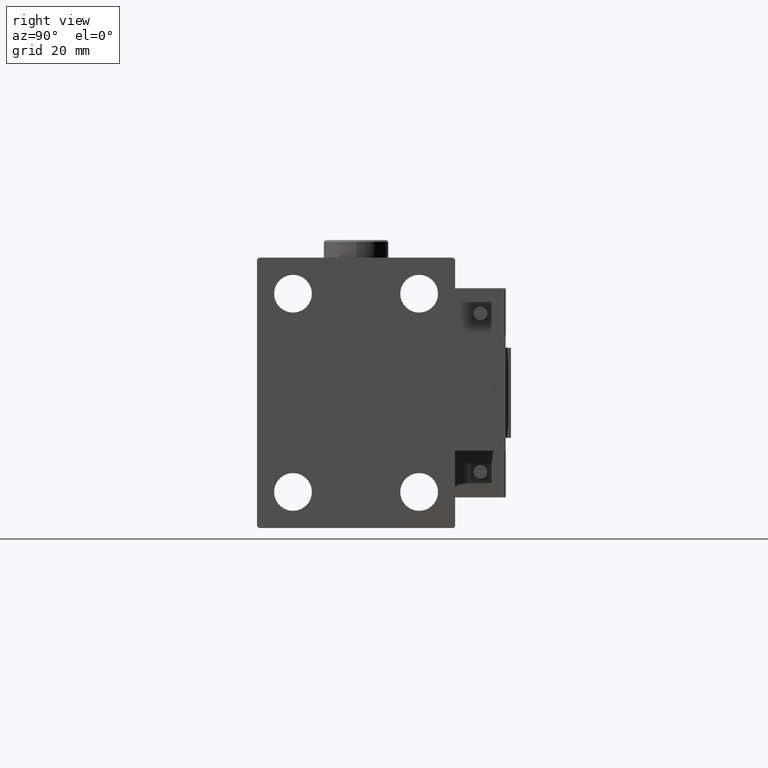
[diagram: clean part render]
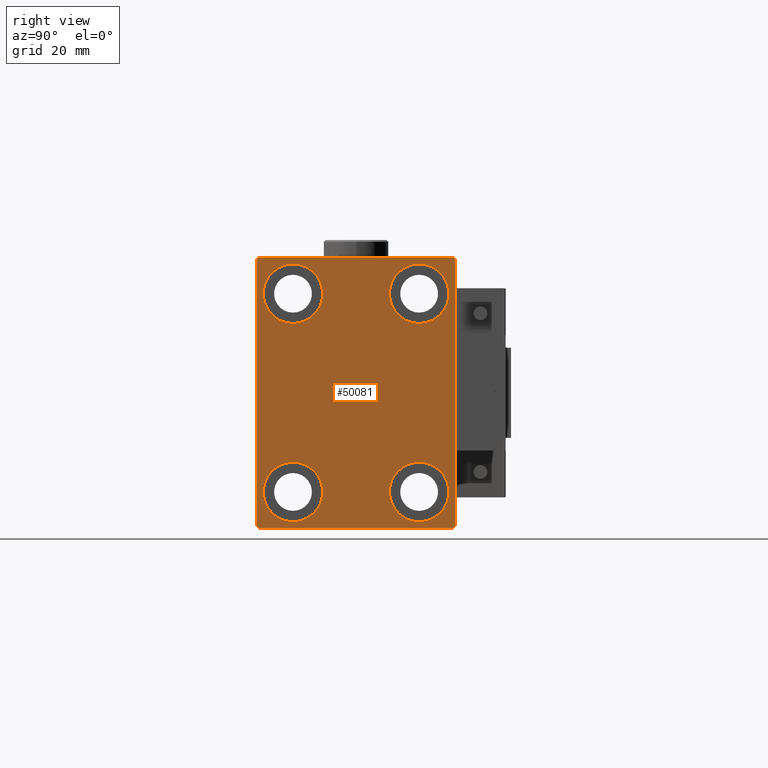
[diagram: same view with one face highlighted and labeled with its STEP entity id]
A machine part, right view. The second image highlights one B-rep face of the part: STEP entity #50081.
In plain terms, the highlighted planar face has unit normal (1, 0, 0).
Its self-contained STEP definition (entity closure, byte-faithful):
#1097 = AXIS2_PLACEMENT_3D ( 'NONE', #37090, #36837, #1119 ) ;
#1119 = DIRECTION ( 'NONE',  ( 0.000000000000000000, 0.000000000000000000, 1.000000000000000000 ) ) ;
#1245 = ORIENTED_EDGE ( 'NONE', *, *, #13082, .T. ) ;
#1535 = CARTESIAN_POINT ( 'NONE',  ( 95.00000000000000000, -26.99999999999998934, -37.50000000000000000 ) ) ;
#2106 = ORIENTED_EDGE ( 'NONE', *, *, #39426, .T. ) ;
#2389 = EDGE_CURVE ( 'NONE', #47533, #44383, #18714, .T. ) ;
#2613 = CARTESIAN_POINT ( 'NONE',  ( 95.00000000000000000, 0.000000000000000000, 0.000000000000000000 ) ) ;
#2781 = DIRECTION ( 'NONE',  ( 0.000000000000000000, -0.7071067811865376918, -0.7071067811865573427 ) ) ;
#2840 = CARTESIAN_POINT ( 'NONE',  ( 95.00000000000000000, 27.49999999999999645, 37.50000000000000711 ) ) ;
#2869 = DIRECTION ( 'NONE',  ( 1.000000000000000000, 0.000000000000000000, 0.000000000000000000 ) ) ;
#3146 = VERTEX_POINT ( 'NONE', #23443 ) ;
#3320 = DIRECTION ( 'NONE',  ( 0.000000000000000000, 0.000000000000000000, 1.000000000000000000 ) ) ;
#3590 = CARTESIAN_POINT ( 'NONE',  ( 95.00000000000000000, 32.25000000000000000, -32.25000000000000000 ) ) ;
#3707 = EDGE_CURVE ( 'NONE', #48420, #22638, #5720, .T. ) ;
#3795 = CARTESIAN_POINT ( 'NONE',  ( 95.00000000000000000, 27.50000000000000355, -37.50000000000000000 ) ) ;
#4222 = EDGE_CURVE ( 'NONE', #36902, #7836, #24259, .T. ) ;
#4273 = VERTEX_POINT ( 'NONE', #17114 ) ;
#4441 = CARTESIAN_POINT ( 'NONE',  ( 95.00000000000000000, -27.50000000000000355, 37.00000000000001421 ) ) ;
#4586 = ORIENTED_EDGE ( 'NONE', *, *, #4222, .T. ) ;
#4947 = EDGE_CURVE ( 'NONE', #22638, #14462, #10617, .T. ) ;
#5196 = ORIENTED_EDGE ( 'NONE', *, *, #21775, .T. ) ;
#5672 = CARTESIAN_POINT ( 'NONE',  ( 95.00000000000000000, -32.25000000000039080, 32.24999999999949551 ) ) ;
#5720 = LINE ( 'NONE', #2840, #13418 ) ;
#5803 = DIRECTION ( 'NONE',  ( -1.000000000000000000, -0.000000000000000000, -0.000000000000000000 ) ) ;
#6260 = ORIENTED_EDGE ( 'NONE', *, *, #41521, .T. ) ;
#7619 = VERTEX_POINT ( 'NONE', #43861 ) ;
#7684 = DIRECTION ( 'NONE',  ( -1.000000000000000000, -0.000000000000000000, -0.000000000000000000 ) ) ;
#7836 = VERTEX_POINT ( 'NONE', #32904 ) ;
#8084 = AXIS2_PLACEMENT_3D ( 'NONE', #8455, #7684, #20202 ) ;
#8455 = CARTESIAN_POINT ( 'NONE',  ( 95.00000000000000000, 17.49999999999999645, -27.50000000000000355 ) ) ;
#9460 = VECTOR ( 'NONE', #25138, 1000.000000000000000 ) ;
#9716 = AXIS2_PLACEMENT_3D ( 'NONE', #2613, #2869, #47694 ) ;
#9866 = CARTESIAN_POINT ( 'NONE',  ( 95.00000000000000000, -17.49999999999999645, 35.74999999999999289 ) ) ;
#10439 = FACE_BOUND ( 'NONE', #14969, .T. ) ;
#10490 = ORIENTED_EDGE ( 'NONE', *, *, #21938, .T. ) ;
#10617 = LINE ( 'NONE', #5672, #14248 ) ;
#11442 = CIRCLE ( 'NONE', #28077, 8.250000000000000000 ) ;
#13082 = EDGE_CURVE ( 'NONE', #34893, #48420, #32868, .T. ) ;
#13313 = CARTESIAN_POINT ( 'NONE',  ( 95.00000000000000000, 32.24999999999944578, 32.25000000000078160 ) ) ;
#13418 = VECTOR ( 'NONE', #14065, 1000.000000000000000 ) ;
#13744 = ORIENTED_EDGE ( 'NONE', *, *, #21285, .T. ) ;
#13943 = ORIENTED_EDGE ( 'NONE', *, *, #48688, .T. ) ;
#14065 = DIRECTION ( 'NONE',  ( 0.000000000000000000, -1.000000000000000000, -1.261617073437677999E-16 ) ) ;
#14248 = VECTOR ( 'NONE', #2781, 1000.000000000000114 ) ;
#14335 = CIRCLE ( 'NONE', #29304, 8.249999999999992895 ) ;
#14359 = FACE_BOUND ( 'NONE', #23593, .T. ) ;
#14413 = LINE ( 'NONE', #45922, #37196 ) ;
#14462 = VERTEX_POINT ( 'NONE', #4441 ) ;
#14969 = EDGE_LOOP ( 'NONE', ( #4586, #10490 ) ) ;
#15039 = DIRECTION ( 'NONE',  ( -1.000000000000000000, -0.000000000000000000, -0.000000000000000000 ) ) ;
#15334 = EDGE_LOOP ( 'NONE', ( #6260, #13943 ) ) ;
#15612 = CIRCLE ( 'NONE', #8084, 8.250000000000000000 ) ;
#16044 = LINE ( 'NONE', #28039, #9460 ) ;
#16108 = CIRCLE ( 'NONE', #1097, 8.249999999999992895 ) ;
#17078 = CARTESIAN_POINT ( 'NONE',  ( 95.00000000000000000, -17.50000000000000355, -35.75000000000000711 ) ) ;
#17114 = CARTESIAN_POINT ( 'NONE',  ( 95.00000000000000000, -27.50000000000000355, -36.99999999999998579 ) ) ;
#17335 = CARTESIAN_POINT ( 'NONE',  ( 95.00000000000000000, -17.49999999999999645, 19.25000000000000000 ) ) ;
#18065 = CARTESIAN_POINT ( 'NONE',  ( 95.00000000000000000, 17.50000000000000355, 27.49999999999999645 ) ) ;
#18455 = DIRECTION ( 'NONE',  ( -1.000000000000000000, -0.000000000000000000, -0.000000000000000000 ) ) ;
#18714 = LINE ( 'NONE', #3590, #49147 ) ;
#18847 = CARTESIAN_POINT ( 'NONE',  ( 95.00000000000000000, -17.50000000000000355, -27.50000000000000355 ) ) ;
#18947 = VERTEX_POINT ( 'NONE', #50428 ) ;
#19128 = ORIENTED_EDGE ( 'NONE', *, *, #2389, .T. ) ;
#19419 = CARTESIAN_POINT ( 'NONE',  ( 95.00000000000000000, 27.00000000000001066, 37.50000000000000711 ) ) ;
#19488 = DIRECTION ( 'NONE',  ( -0.000000000000000000, 0.7071067811865474617, 0.7071067811865474617 ) ) ;
#19699 = LINE ( 'NONE', #3795, #32700 ) ;
#19830 = ORIENTED_EDGE ( 'NONE', *, *, #38997, .T. ) ;
#20202 = DIRECTION ( 'NONE',  ( 0.000000000000000000, 0.000000000000000000, 1.000000000000000000 ) ) ;
#20886 = AXIS2_PLACEMENT_3D ( 'NONE', #39011, #15039, #24673 ) ;
#21285 = EDGE_CURVE ( 'NONE', #4273, #22272, #22356, .T. ) ;
#21720 = CARTESIAN_POINT ( 'NONE',  ( 95.00000000000000000, -17.49999999999999645, 27.49999999999999645 ) ) ;
#21775 = EDGE_CURVE ( 'NONE', #3146, #18947, #15612, .T. ) ;
#21914 = FACE_BOUND ( 'NONE', #15334, .T. ) ;
#21938 = EDGE_CURVE ( 'NONE', #7836, #36902, #11442, .T. ) ;
#22272 = VERTEX_POINT ( 'NONE', #1535 ) ;
#22356 = LINE ( 'NONE', #30941, #35554 ) ;
#22638 = VERTEX_POINT ( 'NONE', #38199 ) ;
#22751 = DIRECTION ( 'NONE',  ( 0.000000000000000000, 0.000000000000000000, -1.000000000000000000 ) ) ;
#23060 = VERTEX_POINT ( 'NONE', #24432 ) ;
#23443 = CARTESIAN_POINT ( 'NONE',  ( 95.00000000000000000, 17.49999999999999645, -19.25000000000000355 ) ) ;
#23593 = EDGE_LOOP ( 'NONE', ( #19830, #5196 ) ) ;
#23894 = CIRCLE ( 'NONE', #37987, 8.249999999999992895 ) ;
#24135 = VERTEX_POINT ( 'NONE', #17335 ) ;
#24259 = CIRCLE ( 'NONE', #20886, 8.250000000000000000 ) ;
#24432 = CARTESIAN_POINT ( 'NONE',  ( 95.00000000000000000, 17.50000000000000355, 35.74999999999999289 ) ) ;
#24673 = DIRECTION ( 'NONE',  ( 0.000000000000000000, 0.000000000000000000, 1.000000000000000000 ) ) ;
#25138 = DIRECTION ( 'NONE',  ( 0.000000000000000000, 1.000000000000000000, 0.000000000000000000 ) ) ;
#26408 = DIRECTION ( 'NONE',  ( 0.000000000000000000, 0.000000000000000000, 1.000000000000000000 ) ) ;
#26609 = PLANE ( 'NONE',  #9716 ) ;
#27489 = ORIENTED_EDGE ( 'NONE', *, *, #3707, .T. ) ;
#28039 = CARTESIAN_POINT ( 'NONE',  ( 95.00000000000000000, -27.50000000000000355, -37.50000000000000000 ) ) ;
#28077 = AXIS2_PLACEMENT_3D ( 'NONE', #18847, #38380, #50619 ) ;
#29304 = AXIS2_PLACEMENT_3D ( 'NONE', #41569, #41322, #33507 ) ;
#29445 = CIRCLE ( 'NONE', #40980, 8.250000000000000000 ) ;
#29588 = ORIENTED_EDGE ( 'NONE', *, *, #38575, .T. ) ;
#30814 = ORIENTED_EDGE ( 'NONE', *, *, #48593, .T. ) ;
#30941 = CARTESIAN_POINT ( 'NONE',  ( 95.00000000000000000, -32.24999999999999289, -32.24999999999999289 ) ) ;
#31291 = ORIENTED_EDGE ( 'NONE', *, *, #34557, .T. ) ;
#32291 = EDGE_LOOP ( 'NONE', ( #30814, #31291 ) ) ;
#32700 = VECTOR ( 'NONE', #43932, 1000.000000000000000 ) ;
#32868 = LINE ( 'NONE', #13313, #45343 ) ;
#32904 = CARTESIAN_POINT ( 'NONE',  ( 95.00000000000000000, -17.50000000000000355, -19.25000000000000355 ) ) ;
#33449 = EDGE_LOOP ( 'NONE', ( #27489, #39621, #37302, #13744, #29588, #19128, #2106, #1245 ) ) ;
#33507 = DIRECTION ( 'NONE',  ( 0.000000000000000000, 0.000000000000000000, 1.000000000000000000 ) ) ;
#34557 = EDGE_CURVE ( 'NONE', #23060, #7619, #14335, .T. ) ;
#34684 = CIRCLE ( 'NONE', #38814, 8.249999999999992895 ) ;
#34893 = VERTEX_POINT ( 'NONE', #50343 ) ;
#35554 = VECTOR ( 'NONE', #42402, 1000.000000000000114 ) ;
#36655 = VERTEX_POINT ( 'NONE', #9866 ) ;
#36837 = DIRECTION ( 'NONE',  ( -1.000000000000000000, -0.000000000000000000, -0.000000000000000000 ) ) ;
#36902 = VERTEX_POINT ( 'NONE', #17078 ) ;
#37090 = CARTESIAN_POINT ( 'NONE',  ( 95.00000000000000000, -17.49999999999999645, 27.49999999999999645 ) ) ;
#37196 = VECTOR ( 'NONE', #22751, 1000.000000000000000 ) ;
#37302 = ORIENTED_EDGE ( 'NONE', *, *, #48628, .T. ) ;
#37987 = AXIS2_PLACEMENT_3D ( 'NONE', #18065, #5803, #38129 ) ;
#38129 = DIRECTION ( 'NONE',  ( 0.000000000000000000, 0.000000000000000000, 1.000000000000000000 ) ) ;
#38199 = CARTESIAN_POINT ( 'NONE',  ( 95.00000000000000000, -27.00000000000003197, 37.50000000000000000 ) ) ;
#38326 = FACE_OUTER_BOUND ( 'NONE', #33449, .T. ) ;
#38380 = DIRECTION ( 'NONE',  ( -1.000000000000000000, -0.000000000000000000, -0.000000000000000000 ) ) ;
#38575 = EDGE_CURVE ( 'NONE', #22272, #47533, #16044, .T. ) ;
#38639 = DIRECTION ( 'NONE',  ( -1.000000000000000000, -0.000000000000000000, -0.000000000000000000 ) ) ;
#38814 = AXIS2_PLACEMENT_3D ( 'NONE', #21720, #38639, #26408 ) ;
#38997 = EDGE_CURVE ( 'NONE', #18947, #3146, #29445, .T. ) ;
#39011 = CARTESIAN_POINT ( 'NONE',  ( 95.00000000000000000, -17.50000000000000355, -27.50000000000000355 ) ) ;
#39426 = EDGE_CURVE ( 'NONE', #44383, #34893, #19699, .T. ) ;
#39621 = ORIENTED_EDGE ( 'NONE', *, *, #4947, .T. ) ;
#40980 = AXIS2_PLACEMENT_3D ( 'NONE', #42163, #18455, #3320 ) ;
#41322 = DIRECTION ( 'NONE',  ( -1.000000000000000000, -0.000000000000000000, -0.000000000000000000 ) ) ;
#41521 = EDGE_CURVE ( 'NONE', #24135, #36655, #16108, .T. ) ;
#41569 = CARTESIAN_POINT ( 'NONE',  ( 95.00000000000000000, 17.50000000000000355, 27.49999999999999645 ) ) ;
#42163 = CARTESIAN_POINT ( 'NONE',  ( 95.00000000000000000, 17.49999999999999645, -27.50000000000000355 ) ) ;
#42402 = DIRECTION ( 'NONE',  ( -0.000000000000000000, 0.7071067811865474617, -0.7071067811865474617 ) ) ;
#43861 = CARTESIAN_POINT ( 'NONE',  ( 95.00000000000000000, 17.50000000000000355, 19.25000000000000000 ) ) ;
#43932 = DIRECTION ( 'NONE',  ( 0.000000000000000000, -9.251858538542970348E-17, 1.000000000000000000 ) ) ;
#44383 = VERTEX_POINT ( 'NONE', #45094 ) ;
#44746 = CARTESIAN_POINT ( 'NONE',  ( 95.00000000000000000, 27.00000000000000355, -37.50000000000000000 ) ) ;
#45094 = CARTESIAN_POINT ( 'NONE',  ( 95.00000000000000000, 27.50000000000000355, -37.00000000000000000 ) ) ;
#45343 = VECTOR ( 'NONE', #48745, 1000.000000000000000 ) ;
#45922 = CARTESIAN_POINT ( 'NONE',  ( 95.00000000000000000, -27.50000000000000355, 37.50000000000000000 ) ) ;
#46128 = FACE_BOUND ( 'NONE', #32291, .T. ) ;
#47533 = VERTEX_POINT ( 'NONE', #44746 ) ;
#47694 = DIRECTION ( 'NONE',  ( 0.000000000000000000, 0.000000000000000000, -1.000000000000000000 ) ) ;
#48420 = VERTEX_POINT ( 'NONE', #19419 ) ;
#48593 = EDGE_CURVE ( 'NONE', #7619, #23060, #23894, .T. ) ;
#48628 = EDGE_CURVE ( 'NONE', #14462, #4273, #14413, .T. ) ;
#48688 = EDGE_CURVE ( 'NONE', #36655, #24135, #34684, .T. ) ;
#48745 = DIRECTION ( 'NONE',  ( -0.000000000000000000, -0.7071067811865622277, 0.7071067811865328068 ) ) ;
#49147 = VECTOR ( 'NONE', #19488, 1000.000000000000114 ) ;
#50081 = ADVANCED_FACE ( 'NONE', ( #14359, #21914, #46128, #10439, #38326 ), #26609, .T. ) ;
#50343 = CARTESIAN_POINT ( 'NONE',  ( 95.00000000000000000, 27.49999999999999645, 37.00000000000004263 ) ) ;
#50428 = CARTESIAN_POINT ( 'NONE',  ( 95.00000000000000000, 17.49999999999999645, -35.75000000000000711 ) ) ;
#50619 = DIRECTION ( 'NONE',  ( 0.000000000000000000, 0.000000000000000000, 1.000000000000000000 ) ) ;